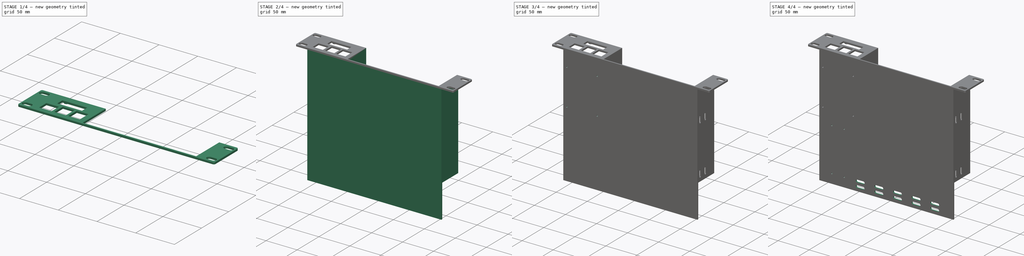
[diagram: build sequence overview — one tinted view per stage of 4, left to right]
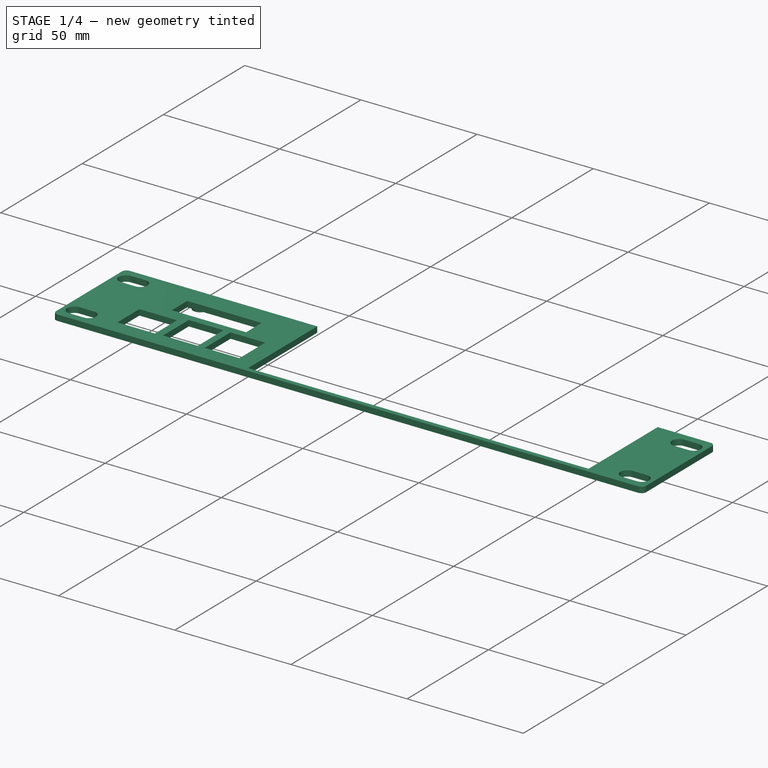
[diagram: stage 1 of 4 — iso view after this stage's code; geometry added in this stage tinted green]
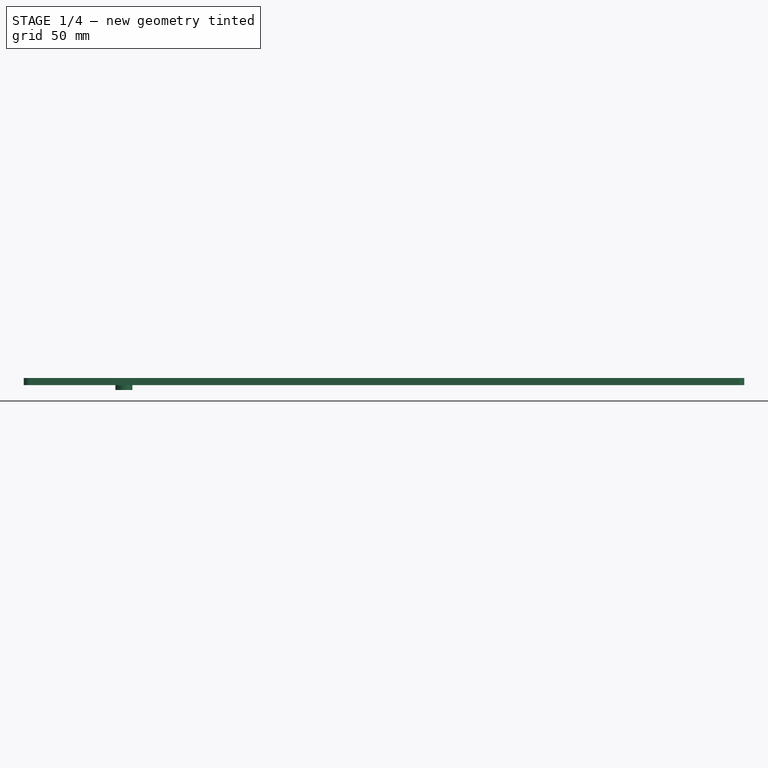
[diagram: stage 1 of 4 — front view after this stage's code; geometry added in this stage tinted green]
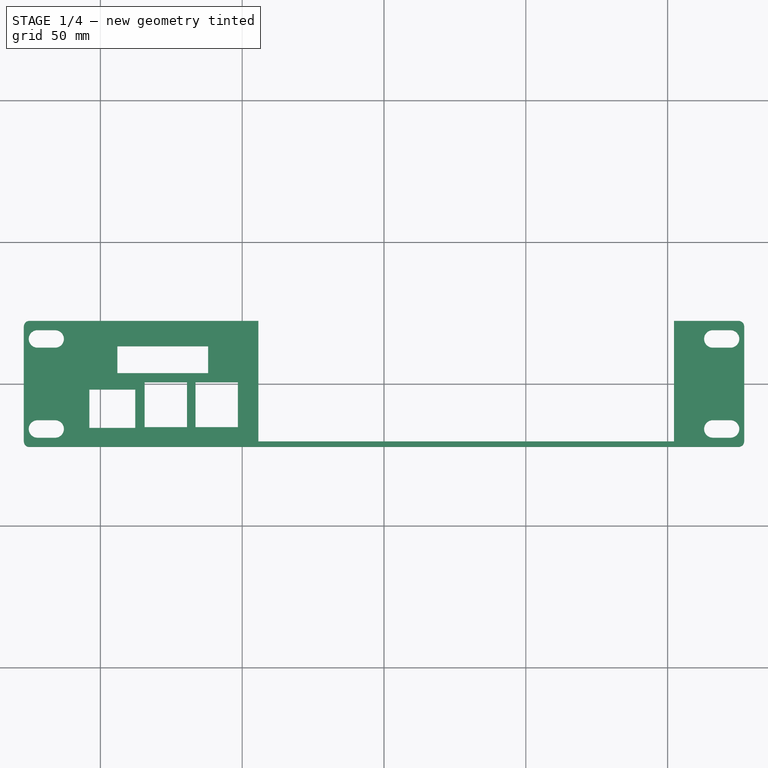
[diagram: stage 1 of 4 — top view after this stage's code; geometry added in this stage tinted green]
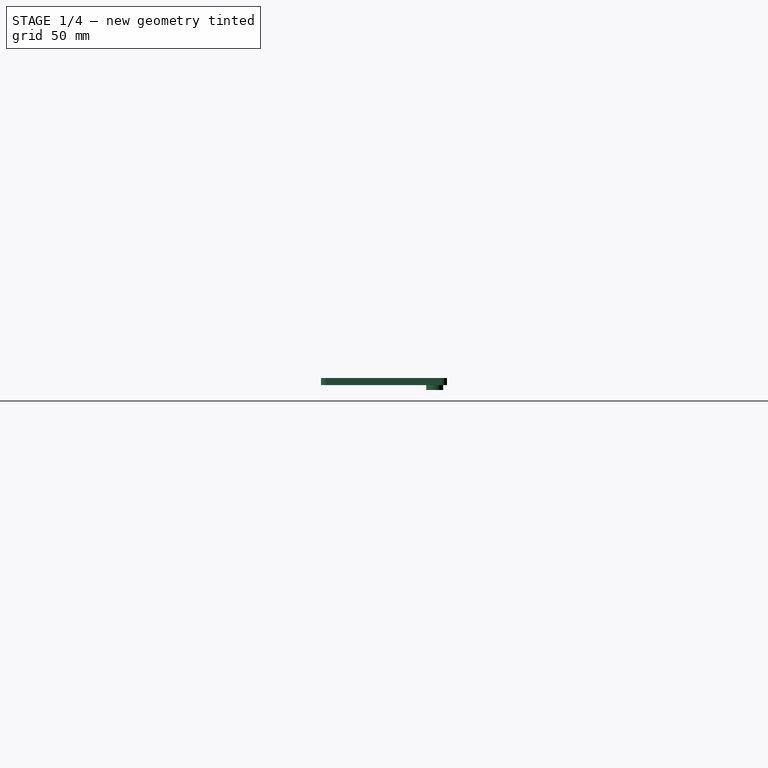
[diagram: stage 1 of 4 — right view after this stage's code; geometry added in this stage tinted green]
FCSTD DOCUMENT  (FreeCAD 1.0R39319 (Git))
Label: 1U-Pi-NAS-5.25-bay
License: All rights reserved
LicenseURL: https://en.wikipedia.org/wiki/All_rights_reserved
objects: Part::Feature×55, Sketcher::SketchObject×12, App::Part×12, PartDesign::Pad×6, PartDesign::Pocket×5, PartDesign::Fillet×1, PartDesign::Body×1
note: 116 computed .brp shape members not serialized (recipe doc carries the construction recipe); baked Part::Feature solids carry a one-line shape summary decoded from their .brp

FEATURE [Sketcher::SketchObject] Sketch  label="Faceplate"
  ArcFitTolerance = 1e-06
  AttachmentSupport = -> [XY_Plane]
  FullyConstrained = true
  MakeInternals = false
  MapMode = 5
  sketch-geometry (44):
    g0: LineSegment StartX=-127 StartY=22.225 StartZ=0 EndX=-127 EndY=-22.225 EndZ=0
    g1: LineSegment StartX=-127 StartY=-22.225 StartZ=0 EndX=127 EndY=-22.225 EndZ=0
    g2: LineSegment StartX=127 StartY=-22.225 StartZ=0 EndX=127 EndY=22.225 EndZ=0
    g3: ArcOfCircle CenterX=-122.162 CenterY=15.875 CenterZ=0 NormalX=0 NormalY=0 NormalZ=1 AngleXU=0 Radius=3.1 StartAngle=1.5708 EndAngle=4.71239
    g4: ArcOfCircle CenterX=-115.962 CenterY=15.875 CenterZ=0 NormalX=0 NormalY=0 NormalZ=1 AngleXU=0 Radius=3.1 StartAngle=4.71239 EndAngle=7.85398
    g5: LineSegment StartX=-122.162 StartY=18.975 StartZ=0 EndX=-115.962 EndY=18.975 EndZ=0
    g6: LineSegment StartX=-122.162 StartY=12.775 StartZ=0 EndX=-115.962 EndY=12.775 EndZ=0
    g7: GeomPoint X=-119.062 Y=15.875 Z=0
    g8: ArcOfCircle CenterX=-122.163 CenterY=-15.875 CenterZ=0 NormalX=0 NormalY=0 NormalZ=1 AngleXU=0 Radius=3.1 StartAngle=1.5708 EndAngle=4.71239
    g9: ArcOfCircle CenterX=-115.963 CenterY=-15.875 CenterZ=0 NormalX=0 NormalY=0 NormalZ=1 AngleXU=0 Radius=3.1 StartAngle=4.71239 EndAngle=7.85398
    g10: LineSegment StartX=-122.163 StartY=-18.975 StartZ=0 EndX=-115.962 EndY=-18.975 EndZ=0
    g11: LineSegment StartX=-122.163 StartY=-12.775 StartZ=0 EndX=-115.963 EndY=-12.775 EndZ=0
    g12: GeomPoint X=-119.062 Y=-15.875 Z=0
    g13: ArcOfCircle CenterX=122.163 CenterY=15.875 CenterZ=0 NormalX=0 NormalY=0 NormalZ=1 AngleXU=0 Radius=3.1 StartAngle=4.71239 EndAngle=7.85398
    g14: ArcOfCircle CenterX=115.963 CenterY=15.875 CenterZ=0 NormalX=0 NormalY=0 NormalZ=1 AngleXU=0 Radius=3.1 StartAngle=1.5708 EndAngle=4.71239
    g15: LineSegment StartX=122.163 StartY=18.975 StartZ=0 EndX=115.963 EndY=18.975 EndZ=0
    g16: LineSegment StartX=122.163 StartY=12.775 StartZ=0 EndX=115.963 EndY=12.775 EndZ=0
    g17: GeomPoint X=119.062 Y=15.875 Z=0
    g18: ArcOfCircle CenterX=122.163 CenterY=-15.875 CenterZ=0 NormalX=0 NormalY=0 NormalZ=1 AngleXU=0 Radius=3.1 StartAngle=4.71239 EndAngle=7.85398
    g19: ArcOfCircle CenterX=115.963 CenterY=-15.875 CenterZ=0 NormalX=0 NormalY=0 NormalZ=1 AngleXU=0 Radius=3.1 StartAngle=1.5708 EndAngle=4.71239
    g20: LineSegment StartX=122.163 StartY=-18.975 StartZ=0 EndX=115.963 EndY=-18.975 EndZ=0
    g21: LineSegment StartX=122.163 StartY=-12.775 StartZ=0 EndX=115.963 EndY=-12.775 EndZ=0
    g22: GeomPoint X=119.062 Y=-15.875 Z=0
    g23: LineSegment StartX=-103.88 StartY=-1.995 StartZ=0 EndX=-103.88 EndY=-15.495 EndZ=0
    g24: LineSegment StartX=-103.88 StartY=-15.495 StartZ=0 EndX=-87.71 EndY=-15.495 EndZ=0
    g25: LineSegment StartX=-87.71 StartY=-15.495 StartZ=0 EndX=-87.71 EndY=-1.995 EndZ=0
    g26: LineSegment StartX=-87.71 StartY=-1.995 StartZ=0 EndX=-103.88 EndY=-1.995 EndZ=0
    g27: LineSegment StartX=-94 StartY=13.295 StartZ=0 EndX=-94 EndY=3.795 EndZ=0
    g28: LineSegment StartX=-94 StartY=3.795 StartZ=0 EndX=-62 EndY=3.795 EndZ=0
    g29: LineSegment StartX=-62 StartY=3.795 StartZ=0 EndX=-62 EndY=13.295 EndZ=0
    g30: LineSegment StartX=-62 StartY=13.295 StartZ=0 EndX=-94 EndY=13.295 EndZ=0
    g31: LineSegment StartX=-66.47 StartY=0.565 StartZ=0 EndX=-66.47 EndY=-15.235 EndZ=0
    g32: LineSegment StartX=-66.47 StartY=-15.235 StartZ=0 EndX=-51.52 EndY=-15.235 EndZ=0
    g33: LineSegment StartX=-51.52 StartY=-15.235 StartZ=0 EndX=-51.52 EndY=0.565 EndZ=0
    g34: LineSegment StartX=-51.52 StartY=0.565 StartZ=0 EndX=-66.47 EndY=0.565 EndZ=0
    g35: LineSegment StartX=-84.42 StartY=0.565 StartZ=0 EndX=-84.42 EndY=-15.235 EndZ=0
    g36: LineSegment StartX=-84.42 StartY=-15.235 StartZ=0 EndX=-69.47 EndY=-15.235 EndZ=0
    g37: LineSegment StartX=-69.47 StartY=-15.235 StartZ=0 EndX=-69.47 EndY=0.565 EndZ=0
    g38: LineSegment StartX=-69.47 StartY=0.565 StartZ=0 EndX=-84.42 EndY=0.565 EndZ=0
    g39: LineSegment StartX=-44.29 StartY=22.225 StartZ=0 EndX=-44.29 EndY=-20.265 EndZ=0
    g40: LineSegment StartX=-44.29 StartY=-20.265 StartZ=0 EndX=102.25 EndY=-20.265 EndZ=0
    g41: LineSegment StartX=102.25 StartY=-20.265 StartZ=0 EndX=102.25 EndY=22.225 EndZ=0
    g42: LineSegment StartX=-44.29 StartY=22.225 StartZ=0 EndX=-127 EndY=22.225 EndZ=0
    g43: LineSegment StartX=102.25 StartY=22.225 StartZ=0 EndX=127 EndY=22.225 EndZ=0
  constraints (114):
    c: Coincident(g0,g1)
    c: Coincident(g1,g2)
    c: Vertical(g0)
    c: Horizontal(g1)
    c: Distance(g0,g2) = 254
    c: Distance(g1,g0) = 44.45
    c: Symmetric(g2,g0,g-2)
    c: Symmetric(g1,g2,g-1)
    c: Tangent(g3,g5) = 1.5708
    c: Tangent(g3,g6) = -1.5708
    c: Tangent(g4,g5) = 1.5708
    c: Tangent(g4,g6) = -1.5708
    c: Horizontal(g6)
    c: Distance(g3,g4) = 6.2
    c: Radius(g3) = 3.1
    c: Symmetric(g3,g4,g7)
    c: Distance(g7,g0) = 7.9375
    c: Parallel(g5,g6)
    c: Tangent(g8,g10) = -1.5708
    c: Tangent(g8,g11) = 1.5708
    c: Tangent(g9,g10) = -1.5708
    c: Tangent(g9,g11) = 1.5708
    c: Horizontal(g11)
    c: Distance(g8,g9) = 6.2
    c: Radius(g8) = 3.1
    c: Symmetric(g8,g9,g12)
    c: Parallel(g10,g11)
    c: Distance(g12,g1) = 6.35
    c: Distance(g12,g0) = 7.9375
    c: Tangent(g13,g15) = -1.5708
    c: Tangent(g13,g16) = 1.5708
    c: Tangent(g14,g15) = -1.5708
    c: Tangent(g14,g16) = 1.5708
    c: Horizontal(g16)
    c: Distance(g13,g14) = 6.2
    c: Radius(g13) = 3.1
    c: Symmetric(g13,g14,g17)
    c: Parallel(g15,g16)
    c: Distance(g17,g2) = 7.9375
    c: Tangent(g18,g20) = 1.5708
    c: Tangent(g18,g21) = -1.5708
    c: Tangent(g19,g20) = 1.5708
    c: Tangent(g19,g21) = -1.5708
    c: Horizontal(g21)
    c: Distance(g18,g19) = 6.2
    c: Radius(g18) = 3.1
    c: Symmetric(g18,g19,g22)
    c: Parallel(g20,g21)
    c: Distance(g22,g1) = 6.35
    c: Distance(g22,g2) = 7.9375
    c: Coincident(g23,g24)
    c: Coincident(g24,g25)
    c: Coincident(g25,g26)
    c: Coincident(g26,g23)
    c: Vertical(g23)
    c: Vertical(g25)
    c: Horizontal(g24)
    c: Horizontal(g26)
    c: DistanceX(g26,g26) = 16.17
    c: DistanceY(g23,g23) = 13.5
    c: Distance(g0,g23) = 23.12
    c: Distance(g2,g26) = 24.22
    c: Coincident(g27,g28)
    c: Coincident(g28,g29)
    c: Coincident(g29,g30)
    c: Coincident(g30,g27)
    c: Vertical(g27)
    c: Vertical(g29)
    c: Horizontal(g28)
    c: Horizontal(g30)
    c: DistanceX(g30,g30) = 32
    c: DistanceY(g27,g27) = 9.5
    c: Distance(g2,g30) = 8.93
    c: Distance(g0,g27) = 33
    c: Coincident(g31,g32)
    c: Coincident(g32,g33)
    c: Coincident(g33,g34)
    c: Coincident(g34,g31)
    c: Vertical(g31)
    c: Vertical(g33)
    c: Horizontal(g32)
    c: Horizontal(g34)
    c: DistanceX(g34,g34) = 14.95
    c: DistanceY(g31,g31) = 15.8
    c: Distance(g1,g32) = 6.99
    c: Coincident(g35,g36)
    c: Coincident(g36,g37)
    c: Coincident(g37,g38)
    c: Coincident(g38,g35)
    c: Vertical(g35)
    c: Vertical(g37)
    c: Horizontal(g36)
    c: Horizontal(g38)
    c: DistanceX(g38,g38) = 14.95
    c: DistanceY(g35,g35) = 15.8
    c: Distance(g25,g35) = 3.29
    c: Distance(g37,g31) = 3
    c: Distance(g1,g36) = 6.99
    c: Vertical(g39)
    c: Coincident(g40,g39)
    c: Horizontal(g40)
    c: Coincident(g41,g40)
    c: Vertical(g41)
    c: Coincident(g42,g39)
    c: Coincident(g42,g0)
    c: Horizontal(g42)
    c: DistanceY(g41,g41) = 42.49
    c: DistanceX(g40,g40) = 146.54
    c: DistanceY(g39,g39) = 42.49
    c: Distance(g2,g41) = 24.75
    c: Coincident(g43,g41)
    c: Coincident(g43,g2)
    c: Distance(g17,g43) = 6.35
    c: Distance(g7,g42) = 6.35
FEATURE [PartDesign::Pad] Pad
  Direction = (0,0,1)
  Length = 2.5
  Length2 = 10
  Profile = -> Sketch
  ReferenceAxis = -> Sketch [N_Axis]
  Refine = true
  Reversed = true
  Suppressed = false
  Type = 0
FEATURE [Sketcher::SketchObject] Sketch001  label="Interior Dimensions"
  ArcFitTolerance = 1e-06
  AttachmentSupport = -> [XY_Plane]
  ExternalGeometry = -> [Pad]
  FullyConstrained = true
  MakeInternals = false
  MapMode = 5
  sketch-geometry (2):
    g0: LineSegment [constr] StartX=109.5 StartY=22.225 StartZ=0 EndX=109.5 EndY=-22.225 EndZ=0
    g1: LineSegment [constr] StartX=-109.5 StartY=22.225 StartZ=0 EndX=-109.5 EndY=-22.225 EndZ=0
  constraints (8):
    c: Distance(g0) = 44.45
    c: Vertical(g0)
    c: PointOnObject(g0,g-4)
    c: Distance(g-2,g0) = 109.5
    c: Distance(g1) = 44.45
    c: Vertical(g1)
    c: PointOnObject(g1,g-4)
    c: Distance(g-2,g1) = 109.5
FEATURE [Part::Feature] Part__Feature  label="PCB_for REF 060923"
  Placement = pos=(0,0,0) rot=(0,1,0;3.14159rad)
  shape: bbox 10.5 x 2 x 13.1 mm, 6 faces (baked)
FEATURE [Part::Feature] Part__Feature001  label="PCB_for REF 060924"
  Placement = pos=(0,0,0) rot=(0,1,0;3.14159rad)
  shape: bbox 17 x 2.3 x 17 mm, 12 faces (baked)
FEATURE [Part::Feature] Part__Feature002  label="PCB_for REF 060925"
  Placement = pos=(0,0,0) rot=(0,1,0;3.14159rad)
  shape: bbox 14.5 x 1 x 10 mm, 6 faces (baked)
FEATURE [Part::Feature] Part__Feature003  label="PCB_for REF 060926"
  Placement = pos=(0,0,0) rot=(0,1,0;3.14159rad)
  shape: bbox 12 x 1.2 x 12 mm, 6 faces (baked)
FEATURE [Part::Feature] Part__Feature004  label="PCB_for REF 060927"
  Placement = pos=(0,0,0) rot=(0,1,0;3.14159rad)
  shape: bbox 8.485 x 0.7 x 8.485 mm, 6 faces (baked)
FEATURE [Part::Feature] Part__Feature005  label="PCB_for REF 060928"
  Placement = pos=(0,0,0) rot=(0,1,0;3.14159rad)
  shape: bbox 4.3 x 2 x 7.3 mm, 6 faces (baked)
FEATURE [Part::Feature] Part__Feature006  label="PCB_for REF 060929"
  Placement = pos=(0,0,0) rot=(0,1,0;3.14159rad)
  shape: bbox 1.6 x 1.5 x 2.9 mm, 6 faces (baked)
FEATURE [Part::Feature] Part__Feature007  label="PCB_for REF 060930"
  Placement = pos=(0,0,0) rot=(0,1,0;3.14159rad)
  shape: bbox 6 x 1 x 6 mm, 6 faces (baked)
FEATURE [Part::Feature] Part__Feature008  label="PCB_for REF 060931"
  Placement = pos=(0,0,0) rot=(0,1,0;3.14159rad)
  shape: bbox 2 x 1.3 x 2.8 mm, 6 faces (baked)
FEATURE [Part::Feature] Part__Feature009  label="PCB_for REF 060932"
  Placement = pos=(0,0,0) rot=(0,1,0;3.14159rad)
  shape: bbox 2 x 1.3 x 2.8 mm, 6 faces (baked)
FEATURE [Part::Feature] Part__Feature010  label="PCB_for REF 060933"
  Placement = pos=(0,0,0) rot=(0,1,0;3.14159rad)
  shape: bbox 2 x 1.3 x 2.8 mm, 6 faces (baked)
FEATURE [Part::Feature] Part__Feature011  label="PCB_for REF 060934"
  Placement = pos=(0,0,0) rot=(0,1,0;3.14159rad)
  shape: bbox 2 x 1.3 x 2.8 mm, 6 faces (baked)
FEATURE [Part::Feature] Part__Feature012  label="PCB_for REF 060935"
  Placement = pos=(0,0,0) rot=(0,1,0;3.14159rad)
  shape: bbox 1.2 x 1 x 2 mm, 6 faces (baked)
FEATURE [Part::Feature] Part__Feature013  label="PCB_for REF 060936"
  Placement = pos=(0,0,0) rot=(0,1,0;3.14159rad)
  shape: bbox 1.2 x 1 x 2 mm, 6 faces (baked)
FEATURE [Part::Feature] Part__Feature014  label="PCB_for REF 060937"
  Placement = pos=(0,0,0) rot=(0,1,0;3.14159rad)
  shape: bbox 1.2 x 1 x 2 mm, 6 faces (baked)
FEATURE [Part::Feature] Part__Feature015  label="PCB_for REF 060938"
  Placement = pos=(0,0,0) rot=(0,1,0;3.14159rad)
  shape: bbox 2 x 1 x 1.2 mm, 6 faces (baked)
FEATURE [Part::Feature] Part__Feature016  label="PCB_for REF 060939"
  Placement = pos=(0,0,0) rot=(0,1,0;3.14159rad)
  shape: bbox 2 x 1 x 1.2 mm, 6 faces (baked)
FEATURE [Part::Feature] Part__Feature017  label="PCB_for REF 060940"
  Placement = pos=(0,0,0) rot=(0,1,0;3.14159rad)
  shape: bbox 2 x 1 x 1.2 mm, 6 faces (baked)
FEATURE [Part::Feature] Part__Feature018  label="PCB_for REF 060941"
  Placement = pos=(0,0,0) rot=(0,1,0;3.14159rad)
  shape: bbox 2 x 1 x 1.2 mm, 6 faces (baked)
FEATURE [Part::Feature] Part__Feature019  label="PCB_for REF 060942"
  Placement = pos=(0,0,0) rot=(0,1,0;3.14159rad)
  shape: bbox 2 x 1 x 3 mm, 6 faces (baked)
FEATURE [Part::Feature] Part__Feature020  label="PCB_for REF 060943"
  Placement = pos=(0,0,0) rot=(0,1,0;3.14159rad)
  shape: bbox 85 x 1.4 x 56 mm, 30 faces (baked)
FEATURE [Part::Feature] Part__Feature021  label="PCB_for REF 060944"
  Placement = pos=(0,0,0) rot=(0,1,0;3.14159rad)
  shape: bbox 1.7 x 1.4 x 3.4 mm, 6 faces (baked)
FEATURE [Part::Feature] Part__Feature022  label="PCB_for REF 060945"
  Placement = pos=(0,0,0) rot=(0,1,0;3.14159rad)
  shape: bbox 3.4 x 1.4 x 1.7 mm, 6 faces (baked)
FEATURE [Part::Feature] Part__Feature023  label="PCB_for REF 060946"
  Placement = pos=(0,0,0) rot=(0,1,0;3.14159rad)
  shape: bbox 2.5 x 0.7 x 3.2 mm, 6 faces (baked)
FEATURE [Part::Feature] Part__Feature024  label="PCB_for REF 060947"
  Placement = pos=(0,0,0) rot=(0,1,0;3.14159rad)
  shape: bbox 3.3 x 0.7 x 3.3 mm, 6 faces (baked)
FEATURE [Part::Feature] Part__Feature025  label="PCB_for REF 060948"
  Placement = pos=(0,0,0) rot=(0,1,0;3.14159rad)
  shape: bbox 3.2 x 0.7 x 2.5 mm, 6 faces (baked)
FEATURE [Part::Feature] Part__Feature026  label="PCB_for REF 060949"
  Placement = pos=(0,0,0) rot=(0,1,0;3.14159rad)
  shape: bbox 1.6 x 0.7 x 2.9 mm, 6 faces (baked)
FEATURE [Part::Feature] Part__Feature027  label="PCB_for REF 060950"
  Placement = pos=(0,0,0) rot=(0,1,0;3.14159rad)
  shape: bbox 2 x 0.7 x 1.2 mm, 6 faces (baked)
FEATURE [App::Part] PCB_for_REF_060923  label="PCB_for REF 060951"
  Group = -> [Part__Feature,Part__Feature001,Part__Feature002,Part__Feature003,Part__Feature004,Part__Feature005,Part__Feature006,Part__Feature007,Part__Feature008,Part__Feature009,Part__Feature010,Part__Feature011,Part__Feature012,Part__Feature013,Part__Feature014,Part__Feature015,Part__Feature016,Part__Feature017,Part__Feature018,Part__Feature019,Part__Feature020,Part__Feature021,Part__Feature022,+5 more]
  Origin = -> Origin001
FEATURE [Part::Feature] Part__Feature028  label="GPIO Header for REF"
  Placement = pos=(-10,1.5,-24.5) rot=(0,0,1;0rad)
  shape: bbox 50.8 x 10.4 x 5 mm, 250 faces (baked)
FEATURE [Part::Feature] Part__Feature029  label="Micro HDMI for REF"
  Placement = pos=(-16.7047,1.65,21.1346) rot=(-1,0,0;1.5708rad)
  shape: bbox 7.2 x 3.6 x 8.529 mm, 62 faces (baked)
FEATURE [Part::Feature] Part__Feature030  label="Micro HDMI for REF001"
  Placement = pos=(-3.30473,1.65,21.1346) rot=(-1,0,0;1.5708rad)
  shape: bbox 7.2 x 3.6 x 8.529 mm, 62 faces (baked)
FEATURE [Part::Feature] Part__Feature031  label="SD CARD for REF"
  Placement = pos=(0.611344,14.58,0.08) rot=(0,-1,0;1.5708rad)
  shape: bbox 11.43 x 1.48 x 11.98 mm, 410 faces (baked)
FEATURE [Part::Feature] Part__Feature032  label="SD CARD for REF001"
  Placement = pos=(0.611344,14.58,0.08) rot=(0,-1,0;1.5708rad)
  shape: bbox 15 x 1.052 x 11.18 mm, 82 faces (baked)
FEATURE [App::Part] SD_CARD_for_REF  label="SD CARD for REF002"
  Group = -> [Part__Feature031,Part__Feature032]
  Origin = -> Origin002
FEATURE [Part::Feature] Part__Feature033  label="USB-C for REF"
  Placement = pos=(-31.3,3.22,27.3) rot=(0,0,1;3.14159rad)
  shape: bbox 8.74 x 4.86 x 7.3 mm, 235 faces (baked)
FEATURE [Part::Feature] Part__Feature034  label="RJ45 for REF"
  Placement = pos=(34.875,2.1,17.8) rot=(-1,0,0;1.5708rad)
  shape: bbox 21.25 x 13.3 x 16 mm, 15 faces (baked)
FEATURE [Part::Feature] Part__Feature035  label="USB for REF"
  Placement = pos=(0.896344,15,-0.05) rot=(0,-1,0;1.5708rad)
  shape: bbox 17.57 x 19.81 x 15.8 mm, 610 faces (baked)
FEATURE [Part::Feature] Part__Feature036  label="USB for REF001"
  Placement = pos=(0.896344,15,-18) rot=(0,-1,0;1.5708rad)
  shape: bbox 17.57 x 19.81 x 15.8 mm, 610 faces (baked)
FEATURE [Part::Feature] Part__Feature037  label="PCIe for REF"
  Placement = pos=(-39.5,3.575,-2.01015) rot=(0.57735,0.57735,0.57735;4.18879rad)
  shape: bbox 3.4 x 4.1 x 10.5 mm, 308 faces (baked)
FEATURE [Part::Feature] Part__Feature038  label="CAM-DISP for REF"
  Placement = pos=(5.95,1.5,19.55) rot=(0,-1,0;1.5708rad)
  shape: bbox 2.95 x 4.1 x 15.5 mm, 10 faces (baked)
FEATURE [Part::Feature] Part__Feature039  label="CAM-DISP for REF001"
  Placement = pos=(12.15,1.5,19.55) rot=(0,-1,0;1.5708rad)
  shape: bbox 2.95 x 4.1 x 15.5 mm, 10 faces (baked)
FEATURE [Part::Feature] Part__Feature040  label="LED for REF"
  Placement = pos=(-40.87,2,14.7) rot=(0.57735,-0.57735,0.57735;2.0944rad)
  shape: bbox 1.48 x 1 x 3.2 mm, 12 faces (baked)
FEATURE [Part::Feature] Part__Feature041  label="BAT Header for REF"
  Placement = pos=(-23.5,1.5,23.25) rot=(0,0,1;0rad)
  shape: bbox 4 x 4.4 x 2.9 mm, 6 faces (baked)
FEATURE [Part::Feature] Part__Feature042  label="PoE Header for REF"
  Placement = pos=(19,1.5,18.5) rot=(0,0,1;0rad)
  shape: bbox 5 x 8.5 x 5 mm, 18 faces (baked)
FEATURE [Part::Feature] Part__Feature043  label="FAN Header for REF"
  Placement = pos=(24.25,1.5,-24) rot=(0,-1,0;1.5708rad)
  shape: bbox 3 x 4.45 x 6 mm, 6 faces (baked)
FEATURE [Part::Feature] Part__Feature044  label="SWITCH for REF"
  Placement = pos=(-40.825,3.15,9.6) rot=(0,-1,0;1.5708rad)
  shape: bbox 2.55 x 3.3 x 4.5 mm, 10 faces (baked)
FEATURE [Part::Feature] Part__Feature045  label="SWITCH for REF001"
  Placement = pos=(-40.825,3.15,9.6) rot=(0,-1,0;1.5708rad)
  shape: bbox 0.85 x 2 x 2 mm, 4 faces (baked)
FEATURE [App::Part] SWITCH_for_REF  label="SWITCH for REF002"
  Group = -> [Part__Feature044,Part__Feature045]
  Origin = -> Origin003
FEATURE [Part::Feature] Part__Feature046  label="UART for REF"
  Placement = pos=(-10.15,1.5,24.1) rot=(0,0,1;0rad)
  shape: bbox 5.3 x 4.4 x 3.2 mm, 6 faces (baked)
FEATURE [App::Part] RP_004882_DD___Pi_5_Mechanical_Reference_3D_model_Iss1  label="RP-004882-DD - Pi 5 Mechanical Reference 3D model Iss1"
  Group = -> [PCB_for_REF_060923,Part__Feature028,Part__Feature029,Part__Feature030,SD_CARD_for_REF,Part__Feature033,Part__Feature034,Part__Feature035,Part__Feature036,Part__Feature037,Part__Feature038,Part__Feature039,Part__Feature040,Part__Feature041,Part__Feature042,Part__Feature043,SWITCH_for_REF,Part__Feature046]
  Origin = -> Origin004
  Placement = pos=(-78,-17.5,-45.5) rot=(0,1,0;4.71239rad)
FEATURE [Part::Feature] Part__Feature047  label="SOLID"
  shape: bbox 168.5 x 146 x 42 mm, 46 faces (baked)
FEATURE [App::Part] Chieftec_CMR_625_Case  label="Chieftec CMR-625 Case"
  Group = -> [Part__Feature047]
  Origin = -> Origin005
FEATURE [Part::Feature] Part__Feature048  label="SOLID001"
  shape: bbox 124.7 x 70 x 12 mm, 8 faces (baked)
FEATURE [App::Part] Chieftec_CMR_625_Caddy  label="Chieftec CMR-625 Caddy"
  Group = -> [Part__Feature048]
  Origin = -> Origin006
  Placement = pos=(-22.5,-35.95,28.05) rot=(0,0,1;3.14159rad)
FEATURE [Part::Feature] Part__Feature049  label="SOLID002"
  shape: bbox 124.7 x 70 x 12 mm, 8 faces (baked)
FEATURE [App::Part] Chieftec_CMR_625_Caddy001  label="Chieftec CMR-625 Caddy001"
  Group = -> [Part__Feature049]
  Origin = -> Origin007
  Placement = pos=(-22.5,-35.95,14.85) rot=(0,0,1;3.14159rad)
FEATURE [Part::Feature] Part__Feature050  label="SOLID003"
  shape: bbox 124.7 x 70 x 12 mm, 8 faces (baked)
FEATURE [App::Part] Chieftec_CMR_625_Caddy002  label="Chieftec CMR-625 Caddy002"
  Group = -> [Part__Feature050]
  Origin = -> Origin008
  Placement = pos=(-22.5,-35.95,1.9) rot=(0,0,1;3.14159rad)
FEATURE [Part::Feature] Part__Feature051  label="SOLID004"
  shape: bbox 124.7 x 70 x 12 mm, 8 faces (baked)
FEATURE [App::Part] Chieftec_CMR_625_Caddy003  label="Chieftec CMR-625 Caddy003"
  Group = -> [Part__Feature051]
  Origin = -> Origin009
  Placement = pos=(-22.5,35.95,28.05) rot=(0,0,1;3.14159rad)
FEATURE [Part::Feature] Part__Feature052  label="SOLID005"
  shape: bbox 124.7 x 70 x 12 mm, 8 faces (baked)
FEATURE [App::Part] Chieftec_CMR_625_Caddy004  label="Chieftec CMR-625 Caddy004"
  Group = -> [Part__Feature052]
  Origin = -> Origin010
  Placement = pos=(-22.5,35.95,14.85) rot=(0,0,1;3.14159rad)
FEATURE [Part::Feature] Part__Feature053  label="SOLID006"
  shape: bbox 124.7 x 70 x 12 mm, 8 faces (baked)
FEATURE [App::Part] Chieftec_CMR_625_Caddy005  label="Chieftec CMR-625 Caddy005"
  Group = -> [Part__Feature053]
  Origin = -> Origin011
  Placement = pos=(-22.5,35.95,1.9) rot=(0,0,1;3.14159rad)
FEATURE [App::Part] Chieftec_CMR_625  label="Chieftec CMR-625"
  Group = -> [Chieftec_CMR_625_Case,Chieftec_CMR_625_Caddy,Chieftec_CMR_625_Caddy001,Chieftec_CMR_625_Caddy002,Chieftec_CMR_625_Caddy003,Chieftec_CMR_625_Caddy004,Chieftec_CMR_625_Caddy005]
  Origin = -> Origin012
  Placement = pos=(29,-20,-84) rot=(-0.57735,0.57735,0.57735;2.0944rad)
FEATURE [Part::Feature] Part__Feature054  label="12c Pi OLED"
  Placement = pos=(-78,8.5,-6) rot=(0,0,1;0rad)
  shape: bbox 35.73 x 20.07 x 11.76 mm, 119 faces (baked)
FEATURE [PartDesign::Fillet] Fillet  label="Rack Corner Fillets"
  Base = -> Pad [Edge2,Edge5,Edge11,Edge8]
  BaseFeature = -> Pad
  Radius = 2
  Refine = true
  SupportTransform = false
  Suppressed = false
  UseAllEdges = false
FEATURE [Sketcher::SketchObject] Sketch003  label="OLED Mount"
  ArcFitTolerance = 1e-06
  AttachmentSupport = -> [Fillet]
  FullyConstrained = false
  MakeInternals = false
  MapMode = 5
  Placement = pos=(0,0,-2.5) rot=(1,0,0;3.14159rad)
  sketch-geometry (2):
    g0: Circle CenterX=-91.7079 CenterY=-17.9004 CenterZ=0 NormalX=0 NormalY=0 NormalZ=1 AngleXU=0 Radius=1.425
    g1: Circle CenterX=-91.7079 CenterY=-17.9004 CenterZ=0 NormalX=0 NormalY=0 NormalZ=1 AngleXU=0 Radius=3
  constraints (3):
    c: Diameter(g0) = 2.85
    c: Diameter(g1) = 6
    c: Coincident(g1,g0)
FEATURE [PartDesign::Pad] Pad001
  BaseFeature = -> Fillet
  Direction = (0,0,-1)
  Length = 1.7
  Length2 = 10
  Profile = -> Sketch003
  ReferenceAxis = -> Sketch003 [N_Axis]
  Refine = true
  Suppressed = false
  Type = 0
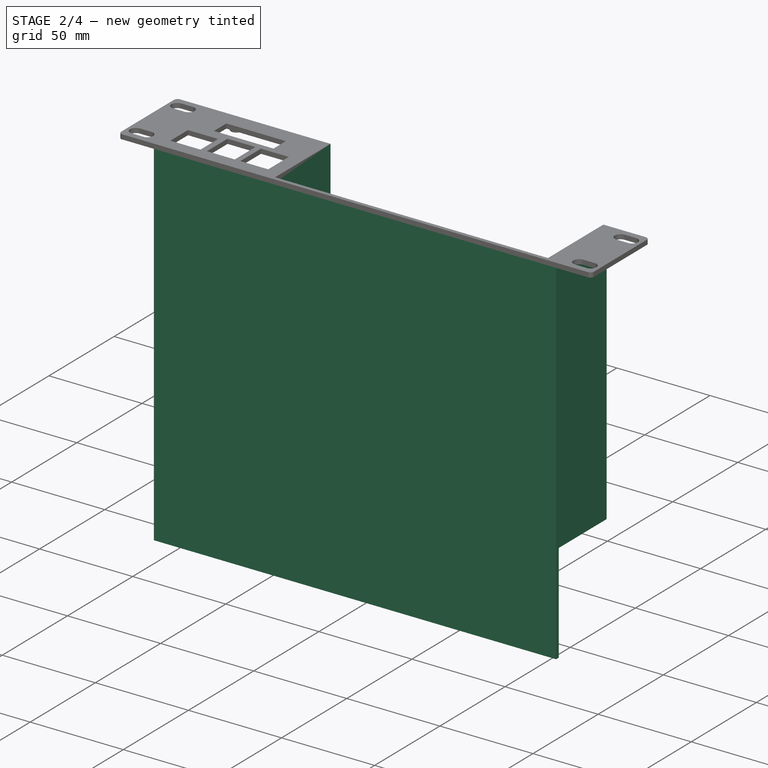
[diagram: stage 2 of 4 — iso view after this stage's code; geometry added in this stage tinted green]
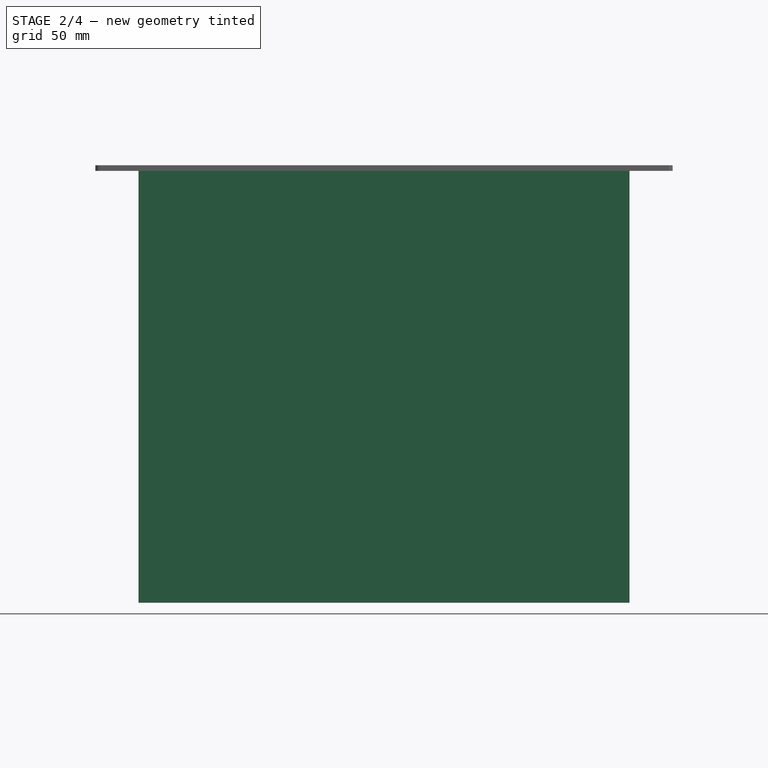
[diagram: stage 2 of 4 — front view after this stage's code; geometry added in this stage tinted green]
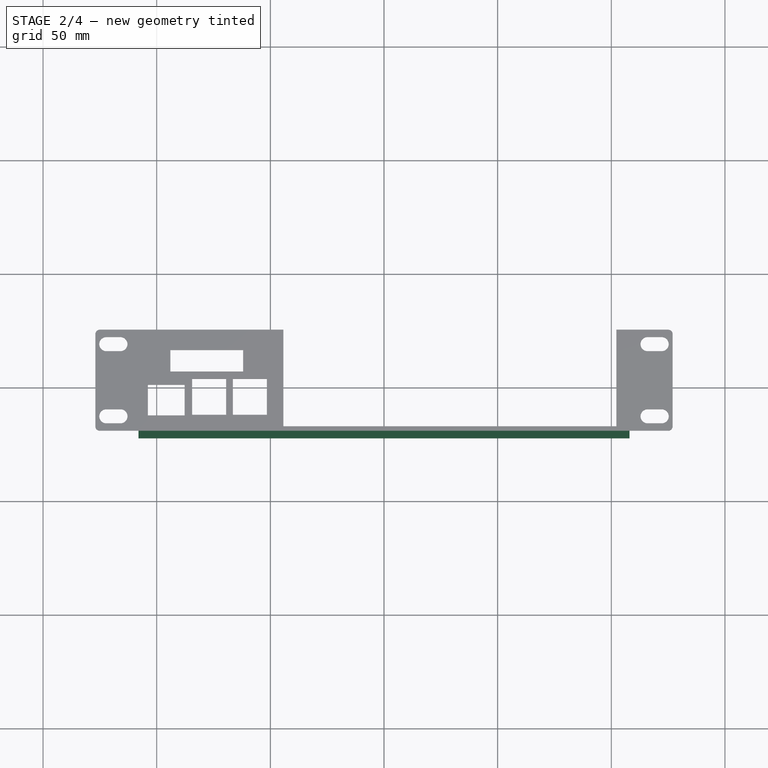
[diagram: stage 2 of 4 — top view after this stage's code; geometry added in this stage tinted green]
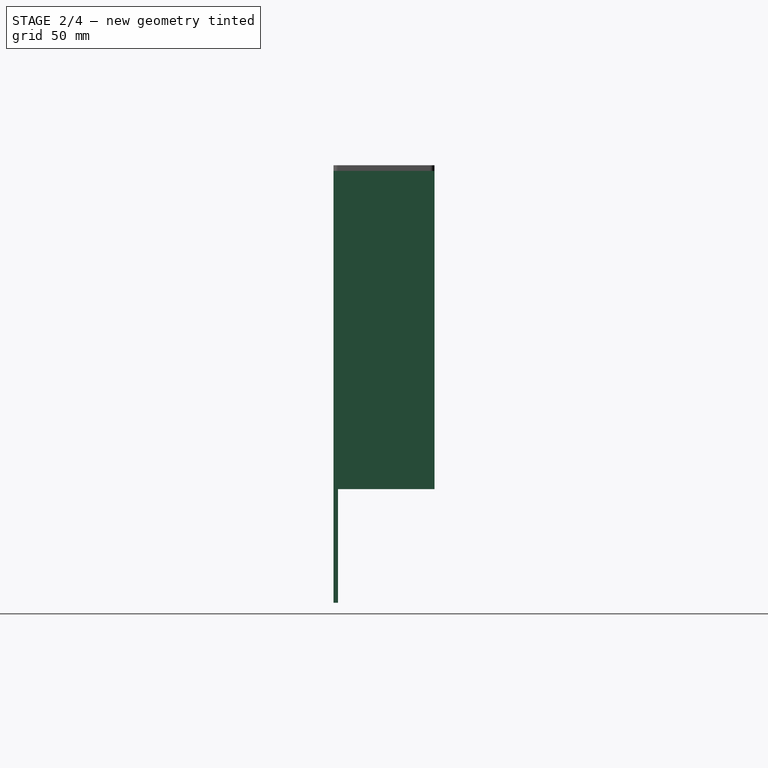
[diagram: stage 2 of 4 — right view after this stage's code; geometry added in this stage tinted green]
FEATURE [Sketcher::SketchObject] Sketch004  label="OLED Mount Hole"
  ArcFitTolerance = 1e-06
  AttachmentSupport = -> [Pad001]
  ExternalGeometry = -> [Pad001]
  FullyConstrained = true
  MakeInternals = false
  MapMode = 5
  Placement = pos=(0,0,-2.5) rot=(1,0,0;3.14159rad)
  sketch-geometry (1):
    g0: Circle CenterX=-91.7079 CenterY=-17.9004 CenterZ=0 NormalX=0 NormalY=0 NormalZ=1 AngleXU=0 Radius=1.425
  constraints (2):
    c: Coincident(g0,g-3)
    c: Equal(g0,g-3)
FEATURE [PartDesign::Pocket] Pocket
  BaseFeature = -> Pad001
  Direction = (0,0,1)
  Length = 2
  Length2 = 5
  Profile = -> Sketch004
  ReferenceAxis = -> Sketch004 [N_Axis]
  Refine = true
  Suppressed = false
  Type = 0
FEATURE [Sketcher::SketchObject] Sketch005  label="Shelf Floor"
  ArcFitTolerance = 1e-06
  AttachmentSupport = -> [Pocket]
  ExternalGeometry = -> [Pocket]
  FullyConstrained = true
  MakeInternals = false
  MapMode = 5
  Placement = pos=(0,0,-2.5) rot=(1,0,0;3.14159rad)
  sketch-geometry (5):
    g0: LineSegment StartX=0 StartY=22.225 StartZ=0 EndX=-108 EndY=22.225 EndZ=0
    g1: LineSegment StartX=0 StartY=22.225 StartZ=0 EndX=108 EndY=22.225 EndZ=0
    g2: LineSegment StartX=108 StartY=22.225 StartZ=0 EndX=108 EndY=20.225 EndZ=0
    g3: LineSegment StartX=108 StartY=20.225 StartZ=0 EndX=-108 EndY=20.225 EndZ=0
    g4: LineSegment StartX=-108 StartY=20.225 StartZ=0 EndX=-108 EndY=22.225 EndZ=0
  constraints (14):
    c: Distance(g0) = 108
    c: Symmetric(g-3,g-3,g0)
    c: PointOnObject(g0,g-3)
    c: Distance(g1) = 108
    c: Coincident(g1,g0)
    c: PointOnObject(g1,g-3)
    c: Distance(g2) = 2
    c: Coincident(g2,g1)
    c: Vertical(g2)
    c: Distance(g3) = 216
    c: Coincident(g3,g2)
    c: Horizontal(g3)
    c: Coincident(g4,g3)
    c: Coincident(g4,g0)
FEATURE [PartDesign::Pad] Pad002
  BaseFeature = -> Pocket
  Direction = (0,0,-1)
  Length = 190
  Length2 = 10
  Profile = -> Sketch005
  ReferenceAxis = -> Sketch005 [N_Axis]
  Refine = true
  Suppressed = false
  Type = 0
FEATURE [Sketcher::SketchObject] Sketch006  label="5.25 Mounts"
  ArcFitTolerance = 1e-06
  AttachmentSupport = -> [Pad002]
  ExternalGeometry = -> [Pad002]
  FullyConstrained = true
  MakeInternals = false
  MapMode = 5
  Placement = pos=(0,-20.225,0) rot=(0,0.707107,0.707107;3.14159rad)
  sketch-geometry (8):
    g0: LineSegment StartX=-102.25 StartY=-2.5 StartZ=0 EndX=-102.25 EndY=-142.5 EndZ=0
    g1: LineSegment StartX=-102.25 StartY=-142.5 StartZ=0 EndX=-104 EndY=-142.5 EndZ=0
    g2: LineSegment StartX=-104 StartY=-142.5 StartZ=0 EndX=-104 EndY=-2.5 EndZ=0
    g3: LineSegment StartX=-104 StartY=-2.5 StartZ=0 EndX=-102.25 EndY=-2.5 EndZ=0
    g4: LineSegment StartX=44.29 StartY=-2.5 StartZ=0 EndX=44.29 EndY=-142.5 EndZ=0
    g5: LineSegment StartX=44.29 StartY=-2.5 StartZ=0 EndX=46.04 EndY=-2.5 EndZ=0
    g6: LineSegment StartX=46.04 StartY=-2.5 StartZ=0 EndX=46.04 EndY=-142.5 EndZ=0
    g7: LineSegment StartX=44.29 StartY=-142.5 StartZ=0 EndX=46.04 EndY=-142.5 EndZ=0
  constraints (22):
    c: Distance(g0) = 140
    c: Coincident(g0,g-4)
    c: Vertical(g0)
    c: Distance(g1) = 1.75
    c: Coincident(g1,g0)
    c: Horizontal(g1)
    c: Coincident(g2,g1)
    c: PointOnObject(g2,g-4)
    c: Vertical(g2)
    c: Coincident(g3,g2)
    c: Coincident(g3,g0)
    c: Distance(g4) = 140
    c: Coincident(g4,g-5)
    c: Vertical(g4)
    c: Distance(g5) = 1.75
    c: Coincident(g5,g4)
    c: PointOnObject(g5,g-5)
    c: Distance(g6) = 140
    c: Coincident(g6,g5)
    c: Vertical(g6)
    c: Coincident(g7,g4)
    c: Coincident(g7,g6)
FEATURE [PartDesign::Pad] Pad003
  BaseFeature = -> Pad002
  Direction = (0,1,-2e-16)
  Length = 42.45
  Length2 = 10
  Profile = -> Sketch006
  ReferenceAxis = -> Sketch006 [N_Axis]
  Refine = true
  Suppressed = false
  Type = 0
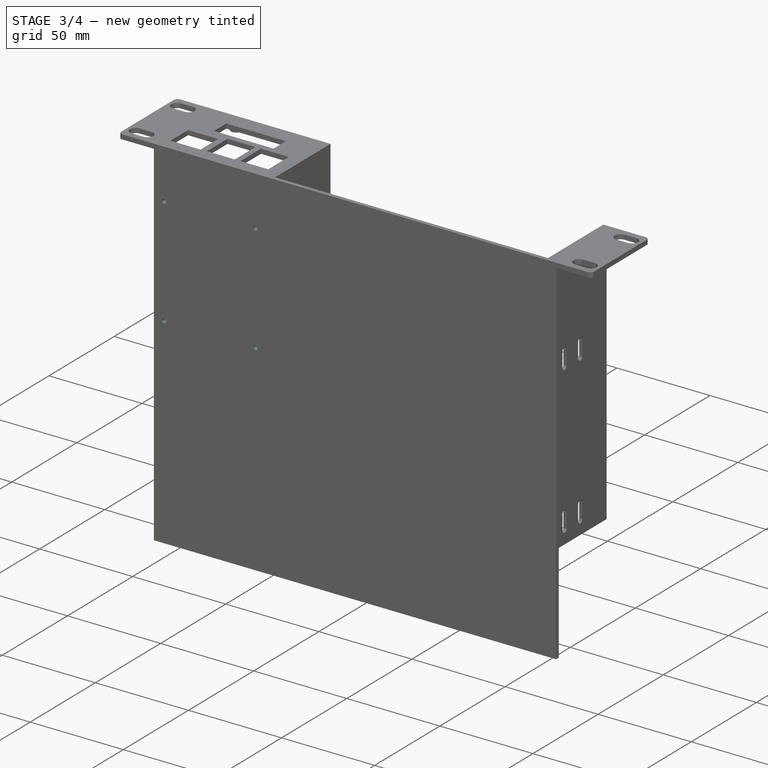
[diagram: stage 3 of 4 — iso view after this stage's code; geometry added in this stage tinted green]
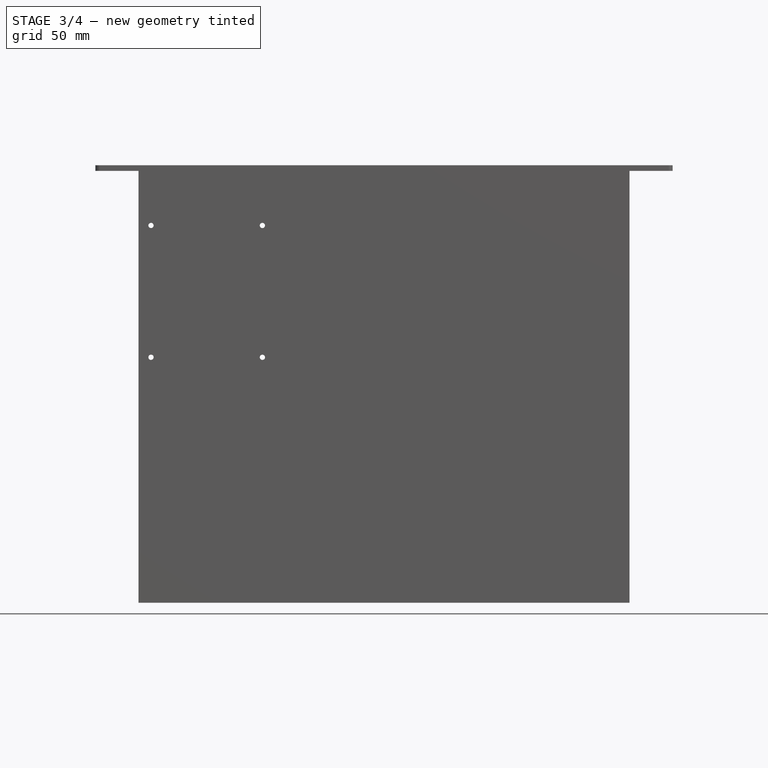
[diagram: stage 3 of 4 — front view after this stage's code; geometry added in this stage tinted green]
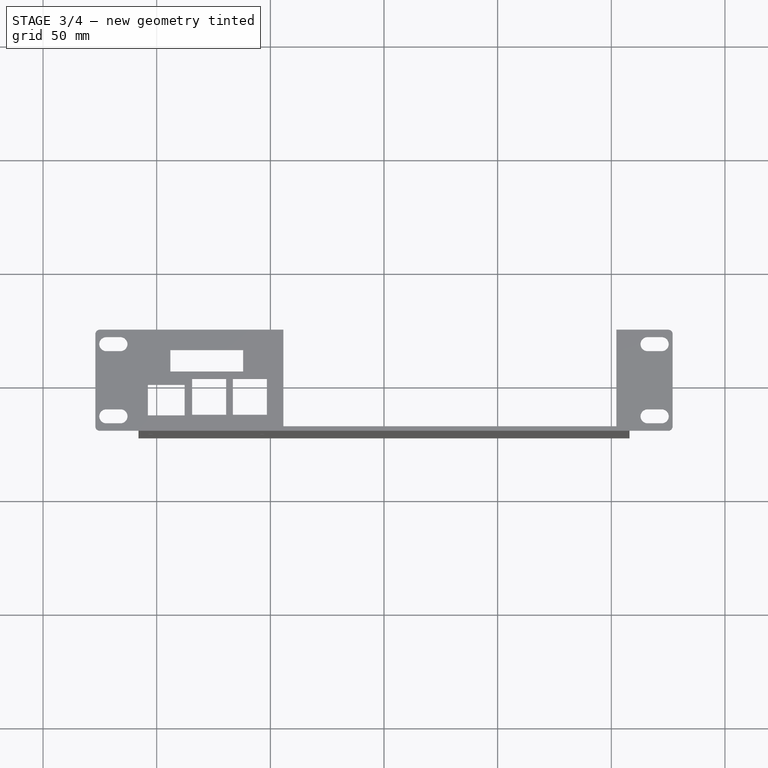
[diagram: stage 3 of 4 — top view after this stage's code; geometry added in this stage tinted green]
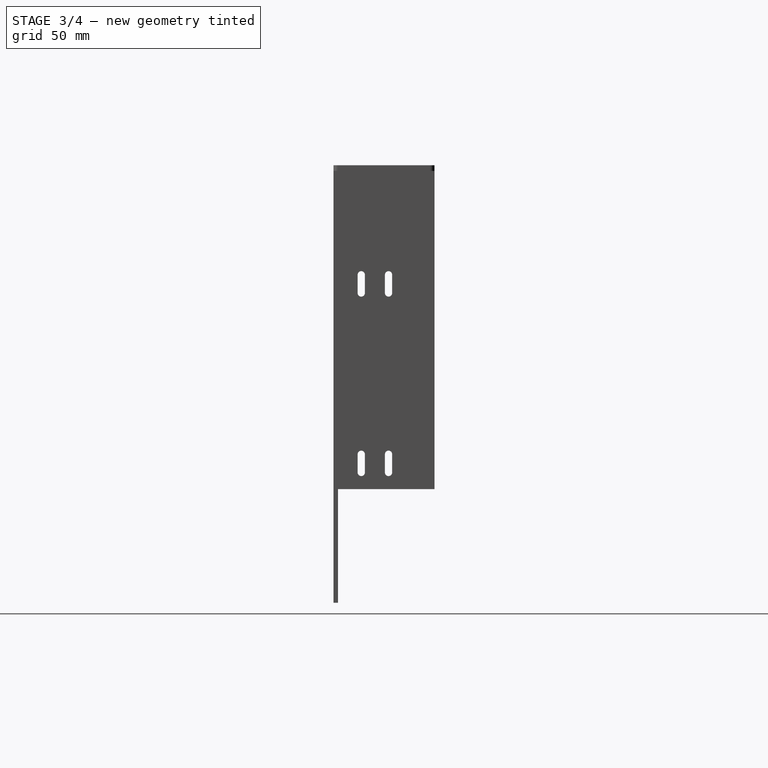
[diagram: stage 3 of 4 — right view after this stage's code; geometry added in this stage tinted green]
FEATURE [Sketcher::SketchObject] Sketch007  label="5.25 Mount Holes"
  ArcFitTolerance = 1e-06
  AttachmentSupport = -> [Pad003]
  FullyConstrained = true
  MakeInternals = false
  MapMode = 5
  Placement = pos=(-46.04,0,0) rot=(0.57735,-0.57735,-0.57735;2.0944rad)
  sketch-geometry (16):
    g0: ArcOfCircle CenterX=-2 CenterY=-48.21 CenterZ=0 NormalX=0 NormalY=0 NormalZ=1 AngleXU=0 Radius=1.6 StartAngle=8e-16 EndAngle=3.14159
    g1: ArcOfCircle CenterX=-2 CenterY=-56.21 CenterZ=0 NormalX=0 NormalY=0 NormalZ=1 AngleXU=0 Radius=1.6 StartAngle=3.14159 EndAngle=6.28319
    g2: LineSegment StartX=-0.4 StartY=-48.21 StartZ=0 EndX=-0.4 EndY=-56.21 EndZ=0
    g3: LineSegment StartX=-3.6 StartY=-48.21 StartZ=0 EndX=-3.6 EndY=-56.21 EndZ=0
    g4: ArcOfCircle CenterX=10 CenterY=-48.21 CenterZ=0 NormalX=0 NormalY=0 NormalZ=1 AngleXU=0 Radius=1.6 StartAngle=0 EndAngle=3.14159
    g5: ArcOfCircle CenterX=10 CenterY=-56.21 CenterZ=0 NormalX=0 NormalY=0 NormalZ=1 AngleXU=0 Radius=1.6 StartAngle=3.14159 EndAngle=6.28319
    g6: LineSegment StartX=11.6 StartY=-48.21 StartZ=0 EndX=11.6 EndY=-56.21 EndZ=0
    g7: LineSegment StartX=8.4 StartY=-48.21 StartZ=0 EndX=8.4 EndY=-56.21 EndZ=0
    g8: ArcOfCircle CenterX=-2 CenterY=-127.16 CenterZ=0 NormalX=0 NormalY=0 NormalZ=1 AngleXU=0 Radius=1.6 StartAngle=3.4e-15 EndAngle=3.14159
    g9: ArcOfCircle CenterX=-2 CenterY=-135.16 CenterZ=0 NormalX=0 NormalY=0 NormalZ=1 AngleXU=0 Radius=1.6 StartAngle=3.14159 EndAngle=6.28319
    g10: LineSegment StartX=-0.4 StartY=-127.16 StartZ=0 EndX=-0.4 EndY=-135.16 EndZ=0
    g11: LineSegment StartX=-3.6 StartY=-127.16 StartZ=0 EndX=-3.6 EndY=-135.16 EndZ=0
    g12: ArcOfCircle CenterX=10 CenterY=-135.16 CenterZ=0 NormalX=0 NormalY=0 NormalZ=1 AngleXU=0 Radius=1.6 StartAngle=3.14159 EndAngle=6.28319
    g13: ArcOfCircle CenterX=10 CenterY=-127.16 CenterZ=0 NormalX=0 NormalY=0 NormalZ=1 AngleXU=0 Radius=1.6 StartAngle=-1.8e-15 EndAngle=3.14159
    g14: LineSegment StartX=8.4 StartY=-135.16 StartZ=0 EndX=8.4 EndY=-127.16 EndZ=0
    g15: LineSegment StartX=11.6 StartY=-135.16 StartZ=0 EndX=11.6 EndY=-127.16 EndZ=0
  constraints (40):
    c: Tangent(g0,g2) = 1.5708
    c: Tangent(g0,g3) = -1.5708
    c: Tangent(g1,g2) = 1.5708
    c: Tangent(g1,g3) = -1.5708
    c: Equal(g0,g1)
    c: Vertical(g3)
    c: Distance(g0,g1) = 8
    c: Radius(g0) = 1.6
    c: Distance(g0,g-2) = 2
    c: Distance(g0,g-1) = 48.21
    c: Tangent(g4,g6) = 1.5708
    c: Tangent(g4,g7) = -1.5708
    c: Tangent(g5,g6) = 1.5708
    c: Tangent(g5,g7) = -1.5708
    c: Equal(g4,g5)
    c: Vertical(g7)
    c: Distance(g4,g5) = 8
    c: Radius(g4) = 1.6
    c: DistanceX(g0,g4) = 12
    c: Distance(g4,g-1) = 48.21
    c: Tangent(g8,g10) = 1.5708
    c: Tangent(g8,g11) = -1.5708
    c: Tangent(g9,g10) = 1.5708
    c: Tangent(g9,g11) = -1.5708
    c: Equal(g8,g9)
    c: Vertical(g11)
    c: Distance(g8,g9) = 8
    c: Radius(g8) = 1.6
    c: Distance(g8,g-2) = 2
    c: DistanceY(g8,g1) = 70.95
    c: Tangent(g12,g14) = 1.5708
    c: Tangent(g12,g15) = -1.5708
    c: Tangent(g13,g14) = 1.5708
    c: Tangent(g13,g15) = -1.5708
    c: Equal(g12,g13)
    c: Vertical(g15)
    c: Distance(g12,g13) = 8
    c: Radius(g12) = 1.6
    c: DistanceX(g9,g12) = 12
    c: DistanceY(g13,g5) = 70.95
FEATURE [PartDesign::Pocket] Pocket001
  BaseFeature = -> Pad003
  Direction = (1,0,0)
  Length = 5
  Length2 = 5
  Profile = -> Sketch007
  ReferenceAxis = -> Sketch007 [N_Axis]
  Refine = true
  Suppressed = false
  Type = 1
FEATURE [Sketcher::SketchObject] Sketch008  label="Pi Mount Holes"
  ArcFitTolerance = 1e-06
  AttachmentSupport = -> [Pocket001]
  ExternalGeometry = -> [Pocket001]
  FullyConstrained = true
  MakeInternals = false
  MapMode = 5
  Placement = pos=(0,-20.225,0) rot=(0,0.707107,0.707107;3.14159rad)
  sketch-geometry (4):
    g0: Circle CenterX=53.51 CenterY=-26.5 CenterZ=0 NormalX=0 NormalY=0 NormalZ=1 AngleXU=0 Radius=1.15
    g1: Circle CenterX=102.5 CenterY=-26.5 CenterZ=0 NormalX=0 NormalY=0 NormalZ=1 AngleXU=0 Radius=1.15
    g2: Circle CenterX=53.5 CenterY=-84.5 CenterZ=0 NormalX=0 NormalY=0 NormalZ=1 AngleXU=0 Radius=1.15
    g3: Circle CenterX=102.5 CenterY=-84.49 CenterZ=0 NormalX=0 NormalY=0 NormalZ=1 AngleXU=0 Radius=1.15
  constraints (12):
    c: Diameter(g0) = 2.3
    c: Distance(g0,g-3) = 54.49
    c: Distance(g0,g-4) = 166
    c: Diameter(g1) = 2.3
    c: Distance(g1,g-4) = 166
    c: DistanceX(g0,g1) = 48.99
    c: Diameter(g2) = 2.3
    c: DistanceY(g2,g0) = 58
    c: Distance(g2,g-3) = 54.5
    c: Diameter(g3) = 2.3
    c: DistanceX(g2,g3) = 49
    c: Distance(g3,g-4) = 108.01
FEATURE [PartDesign::Pocket] Pocket002
  BaseFeature = -> Pocket001
  Direction = (0,-1,2e-16)
  Length = 5
  Length2 = 5
  Profile = -> Sketch008
  ReferenceAxis = -> Sketch008 [N_Axis]
  Refine = true
  Suppressed = false
  Type = 0
FEATURE [Sketcher::SketchObject] Sketch009  label="Pi Mount"
  ArcFitTolerance = 1e-06
  AttachmentSupport = -> [Pocket002]
  ExternalGeometry = -> [Pocket002]
  FullyConstrained = true
  MakeInternals = false
  MapMode = 5
  Placement = pos=(0,-20.225,0) rot=(0,0.707107,0.707107;3.14159rad)
  sketch-geometry (8):
    g0: Circle CenterX=53.51 CenterY=-26.5 CenterZ=0 NormalX=0 NormalY=0 NormalZ=1 AngleXU=0 Radius=2.875
    g1: Circle CenterX=102.5 CenterY=-26.5 CenterZ=0 NormalX=0 NormalY=0 NormalZ=1 AngleXU=0 Radius=2.875
    g2: Circle CenterX=53.5 CenterY=-84.5 CenterZ=0 NormalX=0 NormalY=0 NormalZ=1 AngleXU=0 Radius=2.875
    g3: Circle CenterX=102.5 CenterY=-84.49 CenterZ=0 NormalX=0 NormalY=0 NormalZ=1 AngleXU=0 Radius=2.875
    g4: Circle CenterX=53.51 CenterY=-26.5 CenterZ=0 NormalX=0 NormalY=0 NormalZ=1 AngleXU=0 Radius=1.15
    g5: Circle CenterX=102.5 CenterY=-26.5 CenterZ=0 NormalX=0 NormalY=0 NormalZ=1 AngleXU=0 Radius=1.15
    g6: Circle CenterX=53.5 CenterY=-84.5 CenterZ=0 NormalX=0 NormalY=0 NormalZ=1 AngleXU=0 Radius=1.15
    g7: Circle CenterX=102.5 CenterY=-84.49 CenterZ=0 NormalX=0 NormalY=0 NormalZ=1 AngleXU=0 Radius=1.15
  constraints (16):
    c: Diameter(g0) = 5.75
    c: Coincident(g0,g-3)
    c: Diameter(g1) = 5.75
    c: Coincident(g1,g-4)
    c: Diameter(g2) = 5.75
    c: Coincident(g2,g-6)
    c: Diameter(g3) = 5.75
    c: Coincident(g3,g-5)
    c: Diameter(g4) = 2.3
    c: Coincident(g4,g0)
    c: Diameter(g5) = 2.3
    c: Coincident(g5,g1)
    c: Diameter(g6) = 2.3
    c: Coincident(g6,g2)
    c: Diameter(g7) = 2.3
    c: Coincident(g7,g3)
FEATURE [PartDesign::Pad] Pad004
  BaseFeature = -> Pocket002
  Direction = (0,1,-2e-16)
  Length = 2.7
  Length2 = 10
  Profile = -> Sketch009
  ReferenceAxis = -> Sketch009 [N_Axis]
  Refine = true
  Suppressed = false
  Type = 0
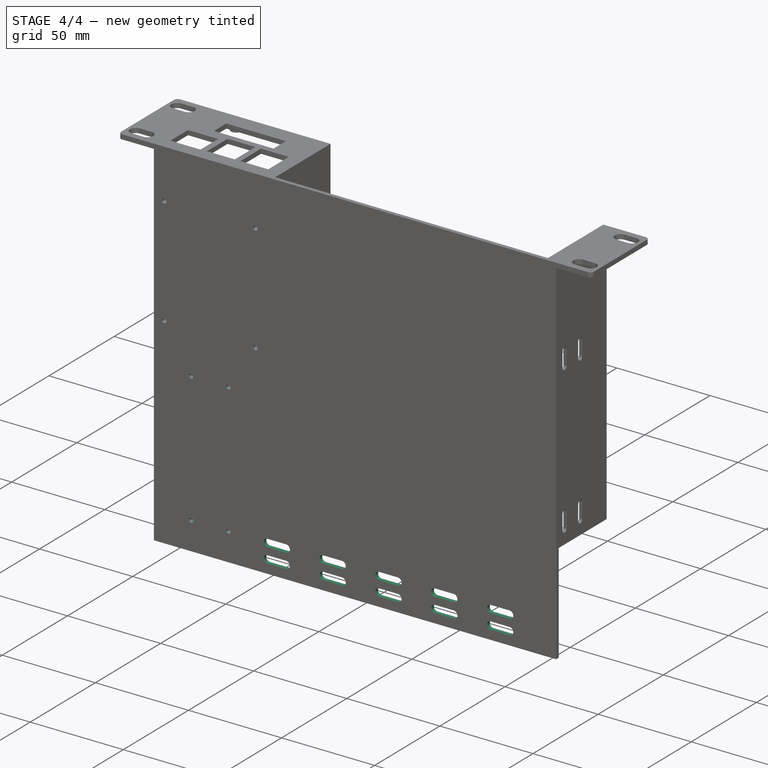
[diagram: stage 4 of 4 — iso view after this stage's code; geometry added in this stage tinted green]
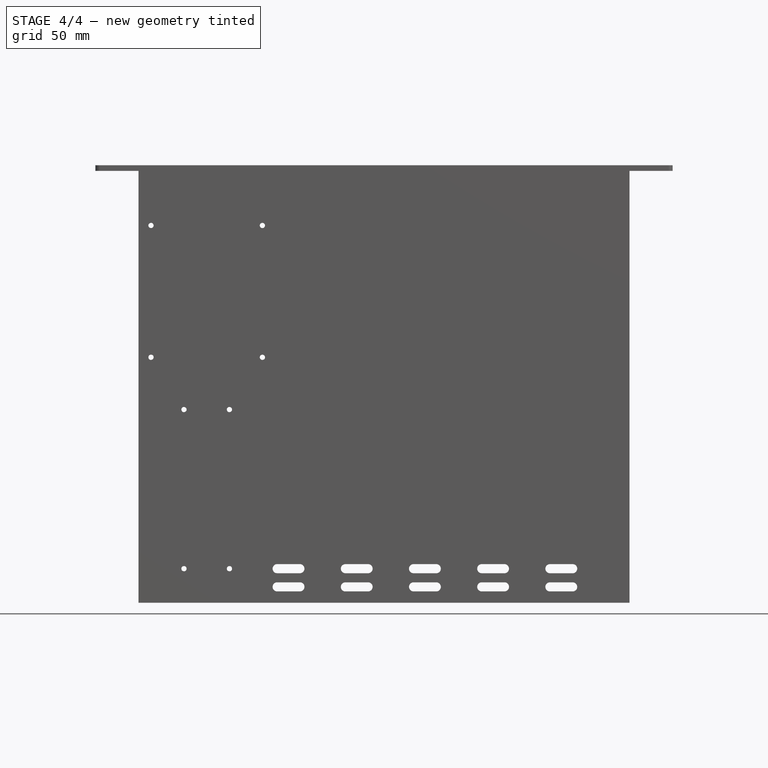
[diagram: stage 4 of 4 — front view after this stage's code; geometry added in this stage tinted green]
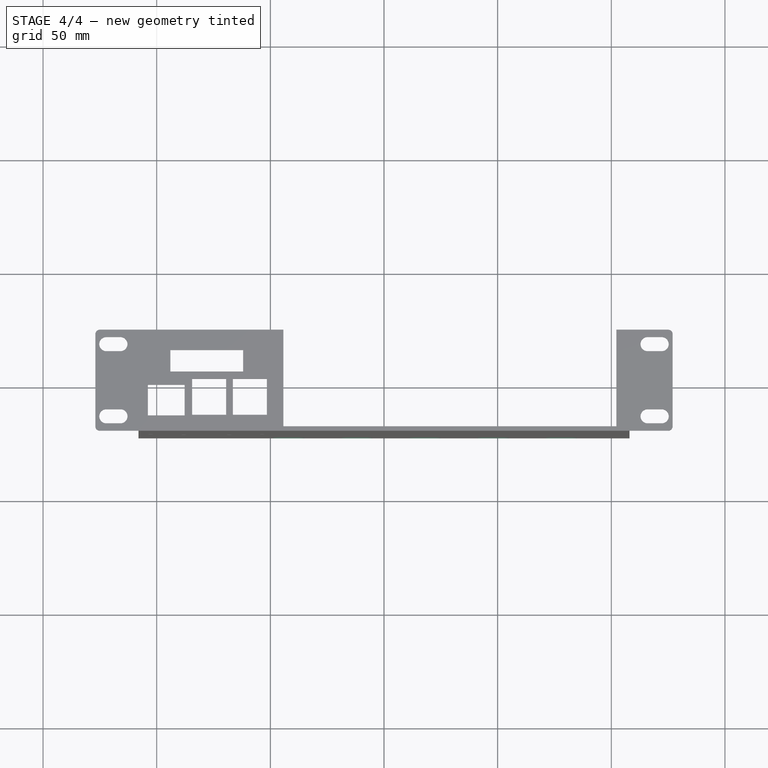
[diagram: stage 4 of 4 — top view after this stage's code; geometry added in this stage tinted green]
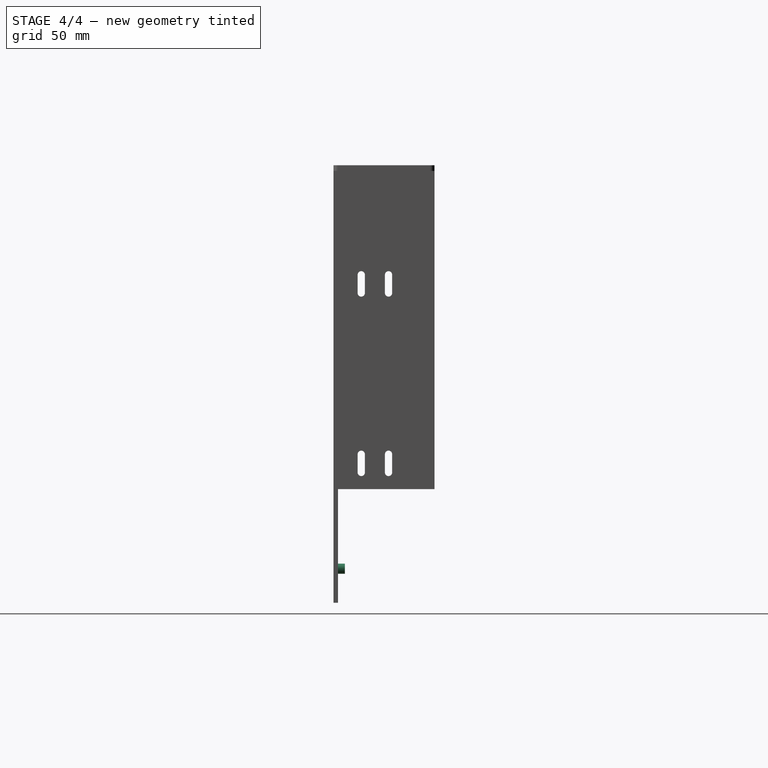
[diagram: stage 4 of 4 — right view after this stage's code; geometry added in this stage tinted green]
FEATURE [Sketcher::SketchObject] Sketch010  label="6SATA Holes"
  ArcFitTolerance = 1e-06
  AttachmentSupport = -> [Pad004]
  ExternalGeometry = -> [Pad004]
  FullyConstrained = true
  MakeInternals = false
  MapMode = 5
  Placement = pos=(0,-20.225,0) rot=(0,0.707107,0.707107;3.14159rad)
  sketch-geometry (4):
    g0: Circle CenterX=68 CenterY=-107.5 CenterZ=0 NormalX=0 NormalY=0 NormalZ=1 AngleXU=0 Radius=1.15
    g1: Circle CenterX=88 CenterY=-107.5 CenterZ=0 NormalX=0 NormalY=0 NormalZ=1 AngleXU=0 Radius=1.15
    g2: Circle CenterX=68 CenterY=-177.5 CenterZ=0 NormalX=0 NormalY=0 NormalZ=1 AngleXU=0 Radius=1.15
    g3: Circle CenterX=88 CenterY=-177.5 CenterZ=0 NormalX=0 NormalY=0 NormalZ=1 AngleXU=0 Radius=1.15
  constraints (12):
    c: Diameter(g0) = 2.3
    c: Diameter(g1) = 2.3
    c: Diameter(g2) = 2.3
    c: Diameter(g3) = 2.3
    c: DistanceX(g0,g1) = 20
    c: DistanceY(g2,g0) = 70
    c: DistanceX(g2,g3) = 20
    c: DistanceY(g3,g1) = 70
    c: Distance(g2,g-4) = 15
    c: Distance(g3,g-4) = 15
    c: Distance(g1,g-3) = 20
    c: Distance(g3,g-3) = 20
FEATURE [PartDesign::Pocket] Pocket003
  BaseFeature = -> Pad004
  Direction = (0,-1,2e-16)
  Length = 5
  Length2 = 5
  Profile = -> Sketch010
  ReferenceAxis = -> Sketch010 [N_Axis]
  Refine = true
  Suppressed = false
  Type = 0
FEATURE [Sketcher::SketchObject] Sketch011  label="6SATA Mount"
  ArcFitTolerance = 1e-06
  AttachmentSupport = -> [Pocket003]
  ExternalGeometry = -> [Pocket003]
  FullyConstrained = true
  MakeInternals = false
  MapMode = 5
  Placement = pos=(0,-20.225,0) rot=(0,0.707107,0.707107;3.14159rad)
  sketch-geometry (8):
    g0: Circle CenterX=68 CenterY=-107.5 CenterZ=0 NormalX=0 NormalY=0 NormalZ=1 AngleXU=0 Radius=1.15
    g1: Circle CenterX=88 CenterY=-107.5 CenterZ=0 NormalX=0 NormalY=0 NormalZ=1 AngleXU=0 Radius=1.15
    g2: Circle CenterX=68 CenterY=-177.5 CenterZ=0 NormalX=0 NormalY=0 NormalZ=1 AngleXU=0 Radius=1.15
    g3: Circle CenterX=88 CenterY=-177.5 CenterZ=0 NormalX=0 NormalY=0 NormalZ=1 AngleXU=0 Radius=1.15
    g4: Circle CenterX=68 CenterY=-107.5 CenterZ=0 NormalX=0 NormalY=0 NormalZ=1 AngleXU=0 Radius=2.25
    g5: Circle CenterX=88 CenterY=-107.5 CenterZ=0 NormalX=0 NormalY=0 NormalZ=1 AngleXU=0 Radius=2.25
    g6: Circle CenterX=68 CenterY=-177.5 CenterZ=0 NormalX=0 NormalY=0 NormalZ=1 AngleXU=0 Radius=2.25
    g7: Circle CenterX=88 CenterY=-177.5 CenterZ=0 NormalX=0 NormalY=0 NormalZ=1 AngleXU=0 Radius=2.25
  constraints (16):
    c: Coincident(g0,g-3)
    c: Equal(g0,g-3)
    c: Coincident(g1,g-4)
    c: Equal(g1,g-4)
    c: Coincident(g2,g-5)
    c: Equal(g2,g-5)
    c: Coincident(g3,g-6)
    c: Equal(g3,g-6)
    c: Diameter(g4) = 4.5
    c: Coincident(g4,g0)
    c: Diameter(g5) = 4.5
    c: Coincident(g5,g1)
    c: Diameter(g6) = 4.5
    c: Coincident(g6,g2)
    c: Diameter(g7) = 4.5
    c: Coincident(g7,g3)
FEATURE [PartDesign::Pad] Pad005
  BaseFeature = -> Pocket003
  Direction = (0,1,-2e-16)
  Length = 3
  Length2 = 10
  Profile = -> Sketch011
  ReferenceAxis = -> Sketch011 [N_Axis]
  Refine = true
  Suppressed = false
  Type = 0
FEATURE [Sketcher::SketchObject] Sketch012  label="Shelf Floor Cutouts"
  ArcFitTolerance = 1e-06
  AttachmentSupport = -> [Pad005]
  ExternalGeometry = -> [Pad005]
  FullyConstrained = true
  MakeInternals = false
  MapMode = 5
  Placement = pos=(0,-20.225,0) rot=(0,0.707107,0.707107;3.14159rad)
  sketch-geometry (40):
    g0: ArcOfCircle CenterX=-53 CenterY=-177.5 CenterZ=0 NormalX=0 NormalY=0 NormalZ=1 AngleXU=0 Radius=2 StartAngle=1.5708 EndAngle=4.71239
    g1: ArcOfCircle CenterX=-43 CenterY=-177.5 CenterZ=0 NormalX=0 NormalY=0 NormalZ=1 AngleXU=0 Radius=2 StartAngle=4.71239 EndAngle=7.85398
    g2: LineSegment StartX=-53 StartY=-175.5 StartZ=0 EndX=-43 EndY=-175.5 EndZ=0
    g3: LineSegment StartX=-53 StartY=-179.5 StartZ=0 EndX=-43 EndY=-179.5 EndZ=0
    g4: ArcOfCircle CenterX=-53 CenterY=-185.5 CenterZ=0 NormalX=0 NormalY=0 NormalZ=1 AngleXU=0 Radius=2 StartAngle=1.5708 EndAngle=4.71239
    g5: ArcOfCircle CenterX=-43 CenterY=-185.5 CenterZ=0 NormalX=0 NormalY=0 NormalZ=1 AngleXU=0 Radius=2 StartAngle=4.71239 EndAngle=7.85398
    g6: LineSegment StartX=-53 StartY=-183.5 StartZ=0 EndX=-43 EndY=-183.5 EndZ=0
    g7: LineSegment StartX=-53 StartY=-187.5 StartZ=0 EndX=-43 EndY=-187.5 EndZ=0
    g8: ArcOfCircle CenterX=-23 CenterY=-177.5 CenterZ=0 NormalX=0 NormalY=0 NormalZ=1 AngleXU=0 Radius=2 StartAngle=1.5708 EndAngle=4.71239
    g9: ArcOfCircle CenterX=-13 CenterY=-177.5 CenterZ=0 NormalX=0 NormalY=0 NormalZ=1 AngleXU=0 Radius=2 StartAngle=4.71239 EndAngle=7.85398
    g10: LineSegment StartX=-23 StartY=-175.5 StartZ=0 EndX=-13 EndY=-175.5 EndZ=0
    g11: LineSegment StartX=-23 StartY=-179.5 StartZ=0 EndX=-13 EndY=-179.5 EndZ=0
    g12: ArcOfCircle CenterX=-23 CenterY=-185.5 CenterZ=0 NormalX=0 NormalY=0 NormalZ=1 AngleXU=0 Radius=2 StartAngle=1.5708 EndAngle=4.71239
    g13: ArcOfCircle CenterX=-13 CenterY=-185.5 CenterZ=0 NormalX=0 NormalY=0 NormalZ=1 AngleXU=0 Radius=2 StartAngle=4.71239 EndAngle=7.85398
    g14: LineSegment StartX=-23 StartY=-183.5 StartZ=0 EndX=-13 EndY=-183.5 EndZ=0
    g15: LineSegment StartX=-23 StartY=-187.5 StartZ=0 EndX=-13 EndY=-187.5 EndZ=0
    g16: ArcOfCircle CenterX=-83 CenterY=-177.5 CenterZ=0 NormalX=0 NormalY=0 NormalZ=1 AngleXU=0 Radius=2 StartAngle=1.5708 EndAngle=4.71239
    g17: ArcOfCircle CenterX=-73 CenterY=-177.5 CenterZ=0 NormalX=0 NormalY=0 NormalZ=1 AngleXU=0 Radius=2 StartAngle=4.71239 EndAngle=7.85398
    g18: LineSegment StartX=-83 StartY=-175.5 StartZ=0 EndX=-73 EndY=-175.5 EndZ=0
    g19: LineSegment StartX=-83 StartY=-179.5 StartZ=0 EndX=-73 EndY=-179.5 EndZ=0
    g20: ArcOfCircle CenterX=-83 CenterY=-185.5 CenterZ=0 NormalX=0 NormalY=0 NormalZ=1 AngleXU=0 Radius=2 StartAngle=1.5708 EndAngle=4.71239
    g21: ArcOfCircle CenterX=-73 CenterY=-185.5 CenterZ=0 NormalX=0 NormalY=0 NormalZ=1 AngleXU=0 Radius=2 StartAngle=4.71239 EndAngle=7.85398
    g22: LineSegment StartX=-83 StartY=-183.5 StartZ=0 EndX=-73 EndY=-183.5 EndZ=0
    g23: LineSegment StartX=-83 StartY=-187.5 StartZ=0 EndX=-73 EndY=-187.5 EndZ=0
    g24: ArcOfCircle CenterX=7 CenterY=-177.5 CenterZ=0 NormalX=0 NormalY=0 NormalZ=1 AngleXU=0 Radius=2 StartAngle=1.5708 EndAngle=4.71239
    g25: ArcOfCircle CenterX=17 CenterY=-177.5 CenterZ=0 NormalX=0 NormalY=0 NormalZ=1 AngleXU=0 Radius=2 StartAngle=4.71239 EndAngle=7.85398
    g26: LineSegment StartX=7 StartY=-175.5 StartZ=0 EndX=17 EndY=-175.5 EndZ=0
    g27: LineSegment StartX=7 StartY=-179.5 StartZ=0 EndX=17 EndY=-179.5 EndZ=0
    g28: ArcOfCircle CenterX=7 CenterY=-185.5 CenterZ=0 NormalX=0 NormalY=0 NormalZ=1 AngleXU=0 Radius=2 StartAngle=1.5708 EndAngle=4.71239
    g29: ArcOfCircle CenterX=17 CenterY=-185.5 CenterZ=0 NormalX=0 NormalY=0 NormalZ=1 AngleXU=0 Radius=2 StartAngle=4.71239 EndAngle=7.85398
    g30: LineSegment StartX=7 StartY=-183.5 StartZ=0 EndX=17 EndY=-183.5 EndZ=0
    g31: LineSegment StartX=7 StartY=-187.5 StartZ=0 EndX=17 EndY=-187.5 EndZ=0
    g32: ArcOfCircle CenterX=37 CenterY=-177.5 CenterZ=0 NormalX=0 NormalY=0 NormalZ=1 AngleXU=0 Radius=2 StartAngle=1.5708 EndAngle=4.71239
    g33: ArcOfCircle CenterX=47 CenterY=-177.5 CenterZ=0 NormalX=0 NormalY=0 NormalZ=1 AngleXU=0 Radius=2 StartAngle=4.71239 EndAngle=7.85398
    g34: LineSegment StartX=37 StartY=-175.5 StartZ=0 EndX=47 EndY=-175.5 EndZ=0
    g35: LineSegment StartX=37 StartY=-179.5 StartZ=0 EndX=47 EndY=-179.5 EndZ=0
    g36: ArcOfCircle CenterX=37 CenterY=-185.5 CenterZ=0 NormalX=0 NormalY=0 NormalZ=1 AngleXU=0 Radius=2 StartAngle=1.5708 EndAngle=4.71239
    g37: ArcOfCircle CenterX=47 CenterY=-185.5 CenterZ=0 NormalX=0 NormalY=0 NormalZ=1 AngleXU=0 Radius=2 StartAngle=4.71239 EndAngle=7.85398
    g38: LineSegment StartX=37 StartY=-183.5 StartZ=0 EndX=47 EndY=-183.5 EndZ=0
    g39: LineSegment StartX=37 StartY=-187.5 StartZ=0 EndX=47 EndY=-187.5 EndZ=0
  constraints (100):
    c: Tangent(g0,g2) = 1.5708
    c: Tangent(g0,g3) = -1.5708
    c: Tangent(g1,g2) = 1.5708
    c: Tangent(g1,g3) = -1.5708
    c: Equal(g0,g1)
    c: Horizontal(g3)
    c: Distance(g0,g1) = 10
    c: Radius(g0) = 2
    c: Tangent(g4,g6) = 1.5708
    c: Tangent(g4,g7) = -1.5708
    c: Tangent(g5,g6) = 1.5708
    c: Tangent(g5,g7) = -1.5708
    c: Equal(g4,g5)
    c: Horizontal(g7)
    c: Distance(g4,g5) = 10
    c: Radius(g4) = 2
    c: Distance(g5,g-3) = 7
    c: Distance(g1,g-3) = 15
    c: Tangent(g8,g10) = 1.5708
    c: Tangent(g8,g11) = -1.5708
    c: Tangent(g9,g10) = 1.5708
    c: Tangent(g9,g11) = -1.5708
    c: Equal(g8,g9)
    c: Horizontal(g11)
    c: Distance(g8,g9) = 10
    c: Radius(g8) = 2
    c: Tangent(g12,g14) = 1.5708
    c: Tangent(g12,g15) = -1.5708
    c: Tangent(g13,g14) = 1.5708
    c: Tangent(g13,g15) = -1.5708
    c: Equal(g12,g13)
    c: Horizontal(g15)
    c: Distance(g12,g13) = 10
    c: Radius(g12) = 2
    c: Distance(g13,g-3) = 7
    c: Distance(g9,g-3) = 15
    c: DistanceX(g1,g9) = 30
    c: DistanceX(g5,g13) = 30
    c: Tangent(g16,g18) = 1.5708
    c: Tangent(g16,g19) = -1.5708
    c: Tangent(g17,g18) = 1.5708
    c: Tangent(g17,g19) = -1.5708
    c: Equal(g16,g17)
    c: Horizontal(g19)
    c: Distance(g16,g17) = 10
    c: Radius(g16) = 2
    c: Tangent(g20,g22) = 1.5708
    c: Tangent(g20,g23) = -1.5708
    c: Tangent(g21,g22) = 1.5708
    c: Tangent(g21,g23) = -1.5708
    c: Equal(g20,g21)
    c: Horizontal(g23)
    c: Distance(g20,g21) = 10
    c: Radius(g20) = 2
    c: Distance(g17,g-3) = 15
    c: Distance(g21,g-3) = 7
    c: DistanceX(g17,g1) = 30
    c: DistanceX(g21,g5) = 30
    c: Distance(g16,g-4) = 25
    c: Distance(g20,g-4) = 25
    c: Tangent(g24,g26) = 1.5708
    c: Tangent(g24,g27) = -1.5708
    c: Tangent(g25,g26) = 1.5708
    c: Tangent(g25,g27) = -1.5708
    c: Equal(g24,g25)
    c: Horizontal(g27)
    c: Distance(g24,g25) = 10
    c: Radius(g24) = 2
    c: Tangent(g28,g30) = 1.5708
    c: Tangent(g28,g31) = -1.5708
    c: Tangent(g29,g30) = 1.5708
    c: Tangent(g29,g31) = -1.5708
    c: Equal(g28,g29)
    c: Horizontal(g31)
    c: Distance(g28,g29) = 10
    c: Radius(g28) = 2
    c: Distance(g29,g-3) = 7
    c: Distance(g25,g-3) = 15
    c: DistanceX(g9,g25) = 30
    c: DistanceX(g13,g29) = 30
    c: Tangent(g32,g34) = 1.5708
    c: Tangent(g32,g35) = -1.5708
    c: Tangent(g33,g34) = 1.5708
    c: Tangent(g33,g35) = -1.5708
    c: Equal(g32,g33)
    c: Horizontal(g35)
    c: Distance(g32,g33) = 10
    c: Radius(g32) = 2
    c: Tangent(g36,g38) = 1.5708
    c: Tangent(g36,g39) = -1.5708
    c: Tangent(g37,g38) = 1.5708
    c: Tangent(g37,g39) = -1.5708
    c: Equal(g36,g37)
    c: Horizontal(g39)
    c: Distance(g36,g37) = 10
    c: Radius(g36) = 2
    c: Distance(g33,g-3) = 15
    c: Distance(g37,g-3) = 7
    c: DistanceX(g25,g33) = 30
    c: DistanceX(g29,g37) = 30
FEATURE [PartDesign::Pocket] Pocket004
  BaseFeature = -> Pad005
  Direction = (0,-1,2e-16)
  Length = 5
  Length2 = 5
  Profile = -> Sketch012
  ReferenceAxis = -> Sketch012 [N_Axis]
  Refine = true
  Suppressed = false
  Type = 0
FEATURE [PartDesign::Body] Body
  AllowCompound = false
  Group = -> [Sketch,Pad,Sketch001,Fillet,Sketch003,Pad001,Sketch004,Pocket,Sketch005,Pad002,Sketch006,Pad003,Sketch007,Pocket001,Sketch008,Pocket002,Sketch009,Pad004,Sketch010,Pocket003,Sketch011,Pad005,Sketch012,Pocket004]
  Origin = -> Origin
  Tip = -> Pocket004
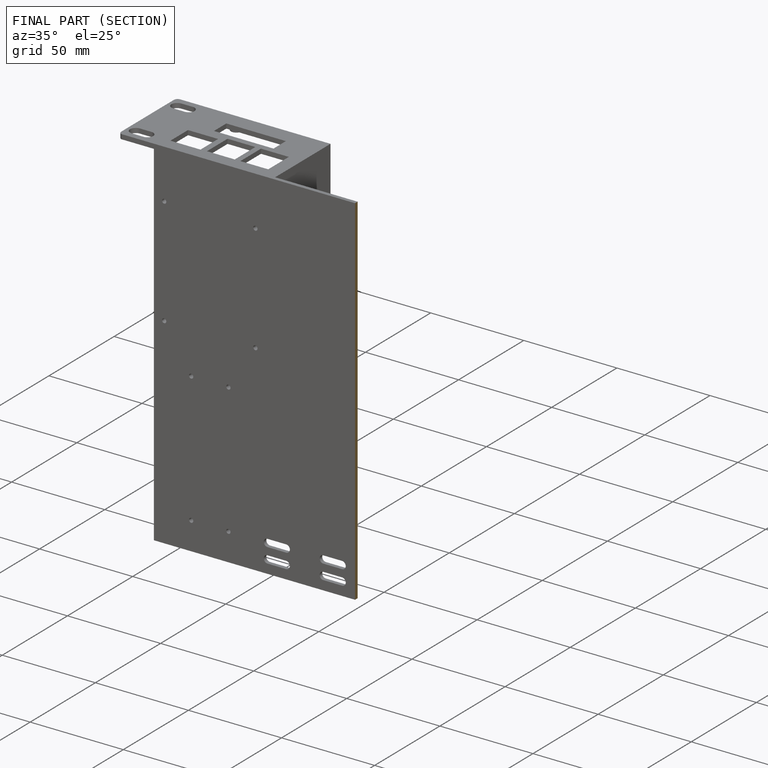
[diagram: finished part — half-section view (interior)]
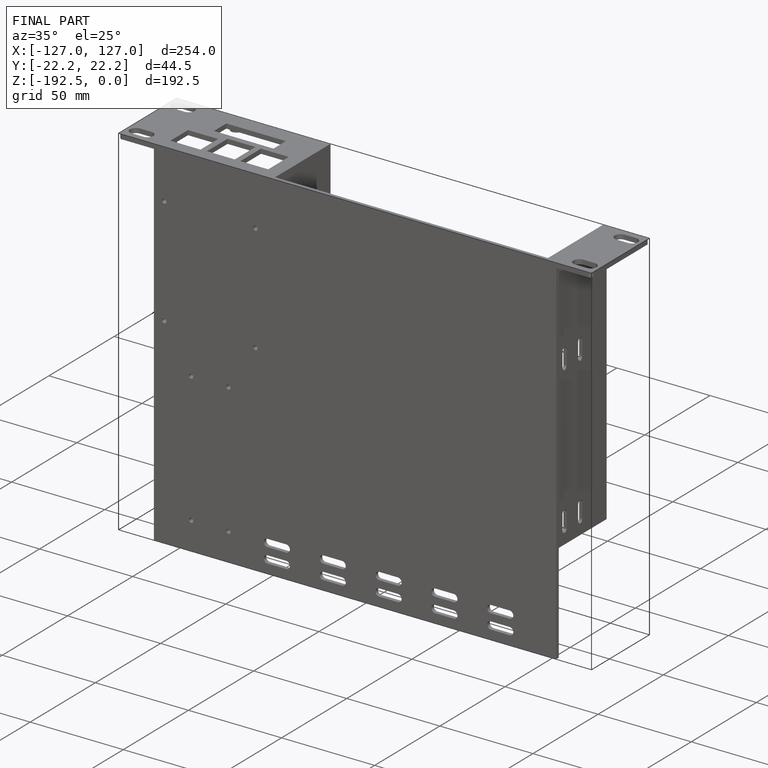
[diagram: finished part — iso view with bounding-box wireframe]
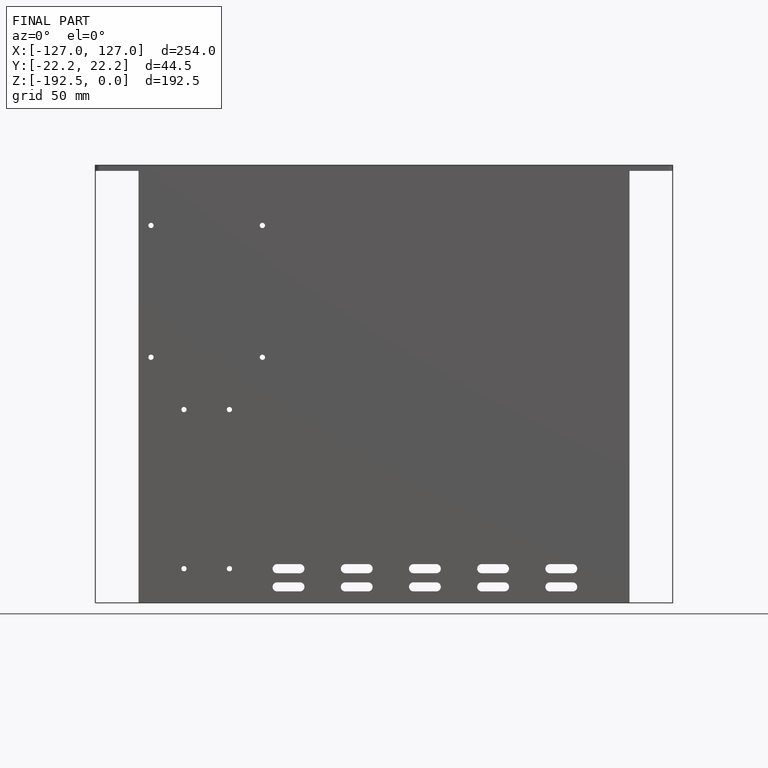
[diagram: finished part — front view with bounding-box wireframe]
